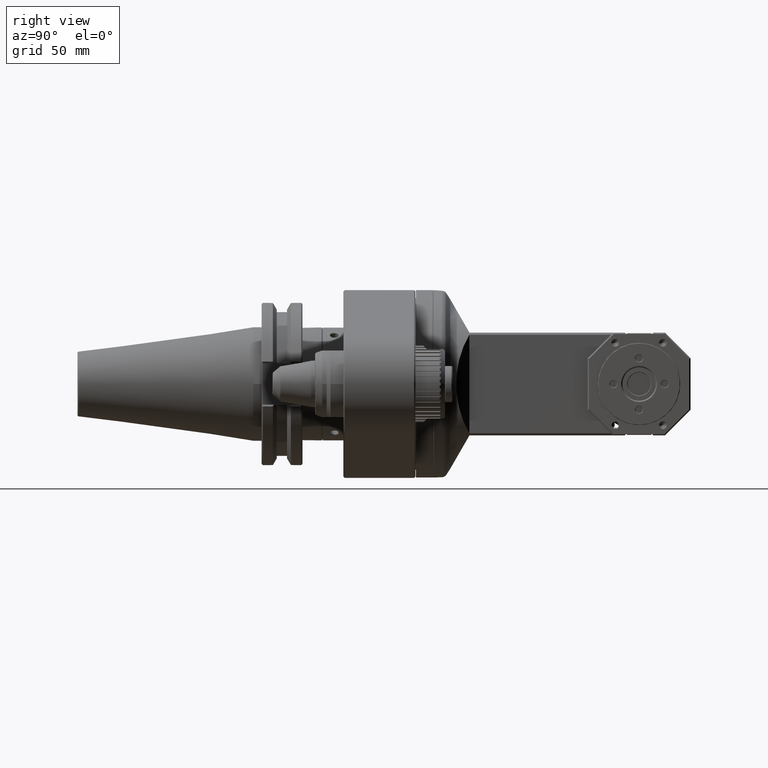
[diagram: clean part render]
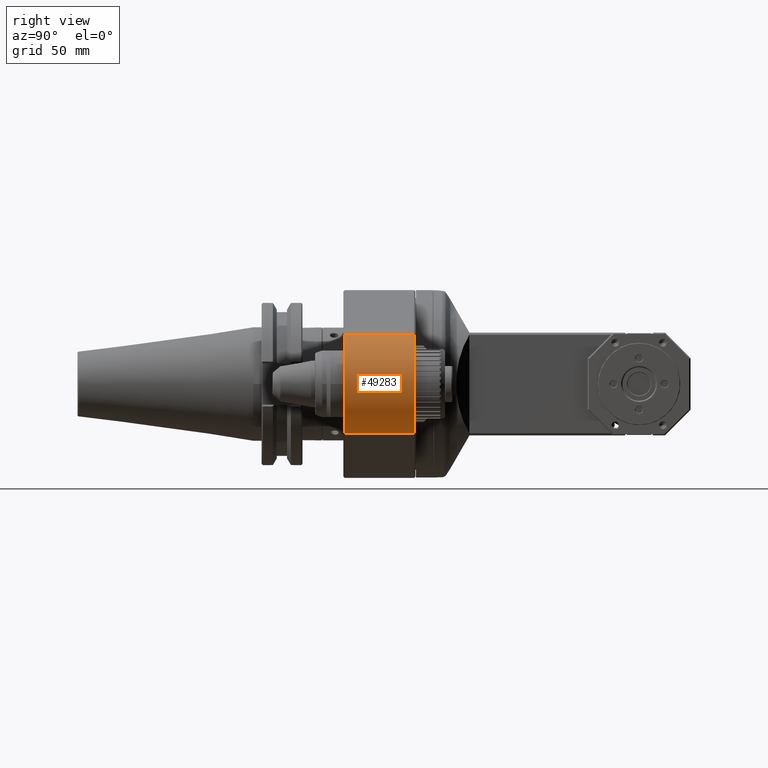
[diagram: same view with one face highlighted and labeled with its STEP entity id]
A machine part, right view. The second image highlights one B-rep face of the part: STEP entity #49283.
In plain terms, the highlighted cylindrical surface (partial cylindrical patch) has radius 20 mm, axis along (0, -1, 0).
Its self-contained STEP definition (entity closure, byte-faithful):
#5575=FACE_OUTER_BOUND('',#8529,.T.);
#8529=EDGE_LOOP('',(#44238,#44239,#44240,#44241));
#13539=LINE('',#82983,#18621);
#13550=LINE('',#83009,#18632);
#18621=VECTOR('',#64870,26.99995256432);
#18632=VECTOR('',#64905,26.99995256376);
#20345=CIRCLE('',#53077,20.);
#20348=CIRCLE('',#53089,20.);
#24715=VERTEX_POINT('',#82978);
#24716=VERTEX_POINT('',#82982);
#24717=VERTEX_POINT('',#82989);
#24719=VERTEX_POINT('',#83007);
#31357=EDGE_CURVE('',#24716,#24715,#13539,.T.);
#31361=EDGE_CURVE('',#24716,#24717,#20345,.T.);
#31371=EDGE_CURVE('',#24717,#24719,#13550,.T.);
#31373=EDGE_CURVE('',#24719,#24715,#20348,.T.);
#44238=ORIENTED_EDGE('',*,*,#31373,.F.);
#44239=ORIENTED_EDGE('',*,*,#31371,.F.);
#44240=ORIENTED_EDGE('',*,*,#31361,.F.);
#44241=ORIENTED_EDGE('',*,*,#31357,.T.);
#46919=CYLINDRICAL_SURFACE('',#53090,20.);
#49283=ADVANCED_FACE('',(#5575),#46919,.T.);
#53077=AXIS2_PLACEMENT_3D('',#82990,#64878,#64879);
#53089=AXIS2_PLACEMENT_3D('',#83013,#64911,#64912);
#53090=AXIS2_PLACEMENT_3D('',#83014,#64913,#64914);
#64870=DIRECTION('',(4.638699555923E-10,-1.,1.797498117444E-9));
#64878=DIRECTION('center_axis',(0.,1.,0.));
#64879=DIRECTION('ref_axis',(0.,0.,-1.));
#64905=DIRECTION('',(4.604288174032E-10,-1.,-1.798559722827E-9));
#64911=DIRECTION('center_axis',(0.,-1.,0.));
#64912=DIRECTION('ref_axis',(0.,0.,-1.));
#64913=DIRECTION('center_axis',(0.,-1.,0.));
#64914=DIRECTION('ref_axis',(0.,0.,-1.));
#82978=CARTESIAN_POINT('',(70.0769159867974,-6.59994106108469,19.3448653238393));
#82982=CARTESIAN_POINT('',(70.076917248461,20.3999389856333,19.3448701764512));
#82983=CARTESIAN_POINT('',(70.07691700164,20.3999762570867,19.34486918992));
#82989=CARTESIAN_POINT('',(70.0769159786877,20.3999409362717,-19.3448652655496));
#82990=CARTESIAN_POINT('Origin',(65.,20.3998100490432,0.));
#83007=CARTESIAN_POINT('',(70.0769172887725,-6.59993908504197,-19.344870298876));
#83009=CARTESIAN_POINT('',(70.07691700823,20.3999762568102,-19.34486918847));
#83013=CARTESIAN_POINT('Origin',(65.,-6.59981045010628,0.));
#83014=CARTESIAN_POINT('Origin',(65.,20.9,0.));